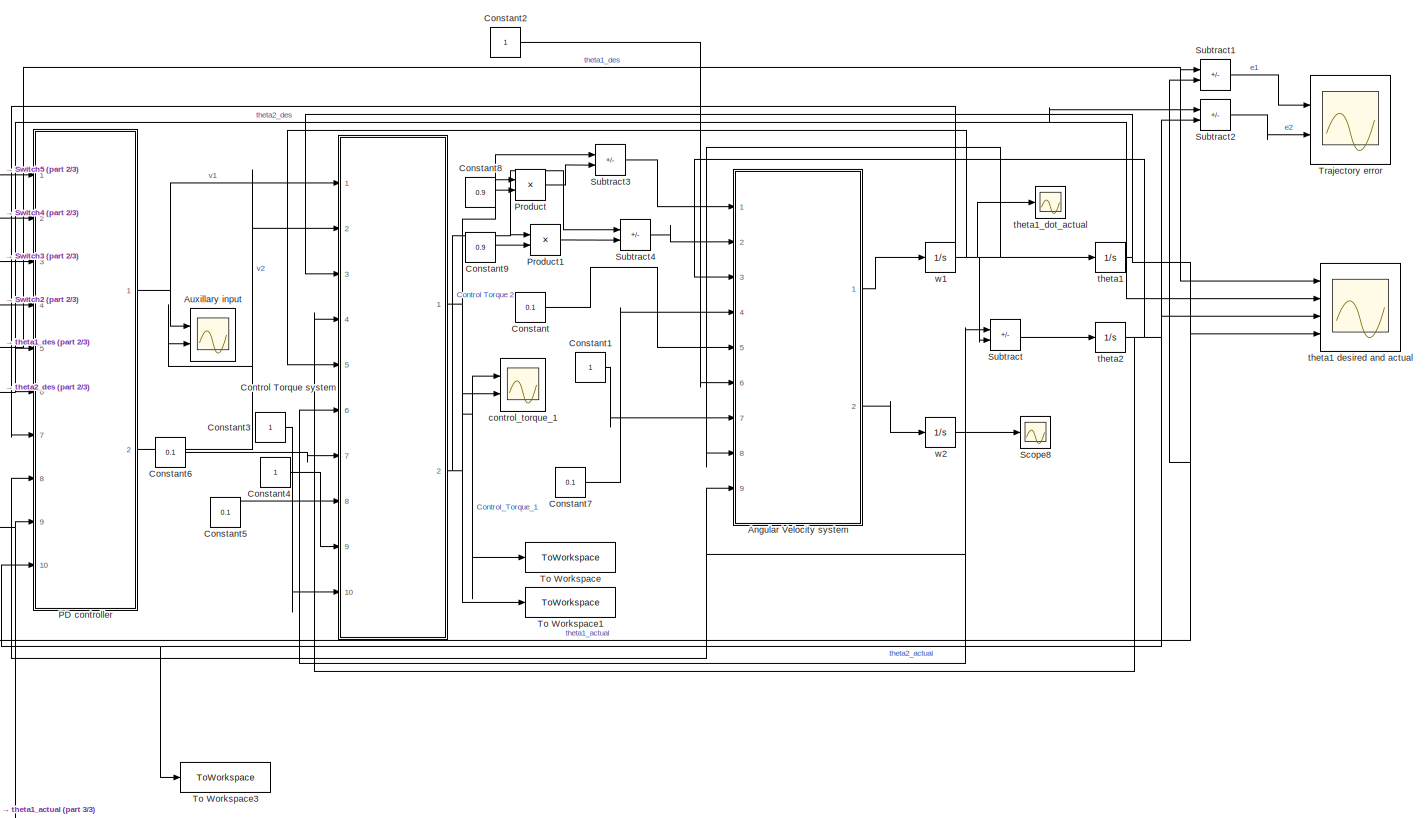
[diagram: root canvas - part 1/3, center side, full height]
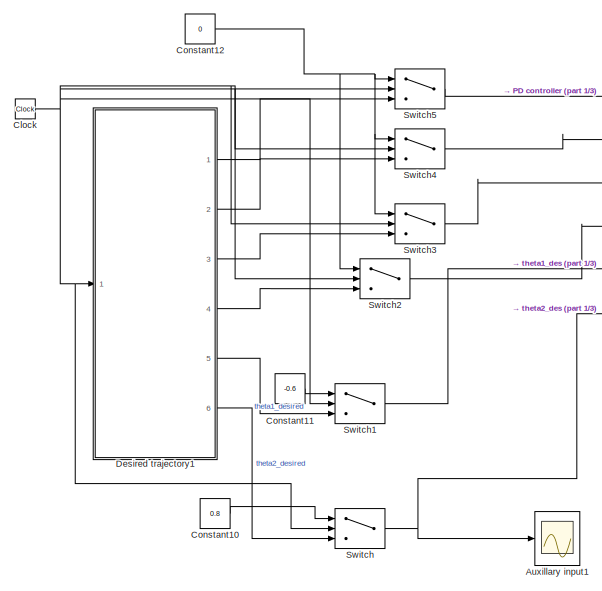
[diagram: root canvas - part 2/3, middle left region]
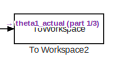
[diagram: root canvas - part 3/3, bottom center region]
MODEL slx_2086d699f761
KIND model
CONFIG AbsTol = auto
CONFIG EnableMultiTasking = off
CONFIG FixedStep = auto
CONFIG MaxStep = auto
CONFIG MinStep = auto
CONFIG RelTol = 1e-3
CONFIG SampleTimeConstraint = Unconstrained
CONFIG SolverName = VariableStepAuto
CONFIG StartTime = 0.0
CONFIG StopTime = 10
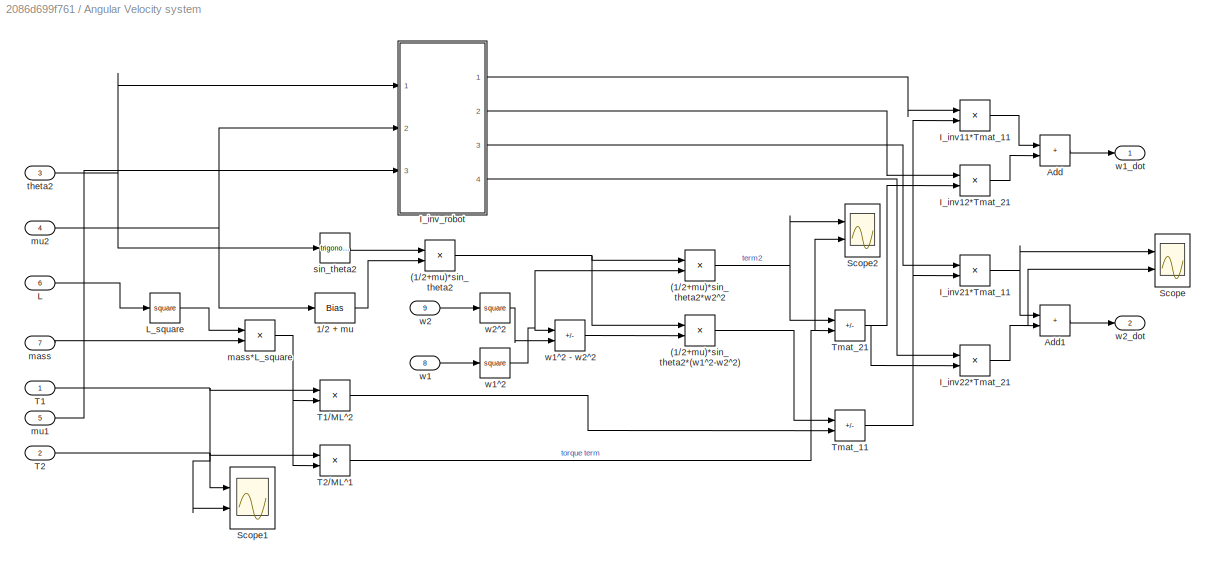
BLOCK [SubSystem] Angular Velocity system
  Ports = [9, 2]
  RequestExecContextInheritance = off
BLOCK [Product] Angular Velocity system/(1//2+mu)*sin_theta2
  Ports = [2, 1]
BLOCK [Product] Angular Velocity system/(1//2+mu)*sin_theta2*(w1^2-w2^2)
  Ports = [2, 1]
BLOCK [Product] Angular Velocity system/(1//2+mu)*sin_theta2*w2^2
  Ports = [2, 1]
BLOCK [Bias] Angular Velocity system/1//2 + mu
  Bias = 1/2
  SaturateOnIntegerOverflow = off
BLOCK [Sum] Angular Velocity system/Add
  IconShape = rectangular
  Ports = [2, 1]
BLOCK [Sum] Angular Velocity system/Add1
  IconShape = rectangular
  Ports = [2, 1]
BLOCK [Product] Angular Velocity system/I_inv11*Tmat_11
  Ports = [2, 1]
BLOCK [Product] Angular Velocity system/I_inv12*Tmat_21
  Ports = [2, 1]
BLOCK [Product] Angular Velocity system/I_inv21*Tmat_11
  Ports = [2, 1]
BLOCK [Product] Angular Velocity system/I_inv22*Tmat_21
  Ports = [2, 1]
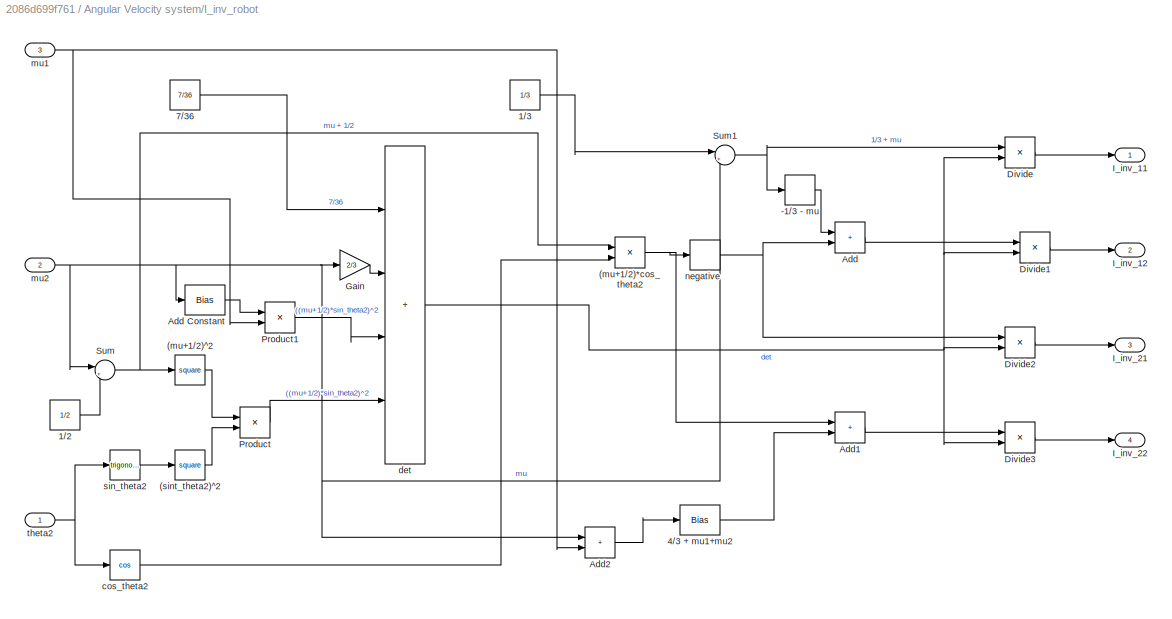
BLOCK [SubSystem] Angular Velocity system/I_inv_robot
  Ports = [3, 4]
  RequestExecContextInheritance = off
BLOCK [Product] Angular Velocity system/I_inv_robot/(mu+1//2)*cos_theta2
  Ports = [2, 1]
BLOCK [Math] Angular Velocity system/I_inv_robot/(mu+1//2)^2
  Operator = square
  Ports = [1, 1]
BLOCK [Math] Angular Velocity system/I_inv_robot/(sint_theta2)^2
  Operator = square
  Ports = [1, 1]
BLOCK [UnaryMinus] Angular Velocity system/I_inv_robot/-1//3 - mu
BLOCK [Constant] Angular Velocity system/I_inv_robot/1//2
  Value = 1/2
BLOCK [Constant] Angular Velocity system/I_inv_robot/1//3
  Value = 1/3
BLOCK [Bias] Angular Velocity system/I_inv_robot/4//3 + mu1+mu2
  Bias = 4/3
  SaturateOnIntegerOverflow = off
BLOCK [Constant] Angular Velocity system/I_inv_robot/7//36
  Value = 7/36
BLOCK [Sum] Angular Velocity system/I_inv_robot/Add
  IconShape = rectangular
  Ports = [2, 1]
BLOCK [Bias] Angular Velocity system/I_inv_robot/Add Constant
  Bias = 1/3
  SaturateOnIntegerOverflow = off
BLOCK [Sum] Angular Velocity system/I_inv_robot/Add1
  IconShape = rectangular
  Ports = [2, 1]
BLOCK [Sum] Angular Velocity system/I_inv_robot/Add2
  IconShape = rectangular
  Ports = [2, 1]
BLOCK [Product] Angular Velocity system/I_inv_robot/Divide
  Inputs = */
  Ports = [2, 1]
BLOCK [Product] Angular Velocity system/I_inv_robot/Divide1
  Inputs = */
  Ports = [2, 1]
BLOCK [Product] Angular Velocity system/I_inv_robot/Divide2
  Inputs = */
  Ports = [2, 1]
BLOCK [Product] Angular Velocity system/I_inv_robot/Divide3
  Inputs = */
  Ports = [2, 1]
BLOCK [Gain] Angular Velocity system/I_inv_robot/Gain
  Gain = 2/3
BLOCK [Outport] Angular Velocity system/I_inv_robot/I_inv_11
BLOCK [Outport] Angular Velocity system/I_inv_robot/I_inv_12
  Port = 2
BLOCK [Outport] Angular Velocity system/I_inv_robot/I_inv_21
  Port = 3
BLOCK [Outport] Angular Velocity system/I_inv_robot/I_inv_22
  Port = 4
BLOCK [Product] Angular Velocity system/I_inv_robot/Product
  Ports = [2, 1]
BLOCK [Product] Angular Velocity system/I_inv_robot/Product1
  Ports = [2, 1]
BLOCK [Sum] Angular Velocity system/I_inv_robot/Sum
  Inputs = |++
  Ports = [2, 1]
BLOCK [Sum] Angular Velocity system/I_inv_robot/Sum1
  Inputs = |++
  Ports = [2, 1]
BLOCK [Trigonometry] Angular Velocity system/I_inv_robot/cos_theta2
  Operator = cos
  Ports = [1, 1]
BLOCK [Sum] Angular Velocity system/I_inv_robot/det
  IconShape = rectangular
  Inputs = ++++
  Ports = [4, 1]
BLOCK [Inport] Angular Velocity system/I_inv_robot/mu1
  Port = 3
BLOCK [Inport] Angular Velocity system/I_inv_robot/mu2
  Port = 2
BLOCK [UnaryMinus] Angular Velocity system/I_inv_robot/negative
BLOCK [Trigonometry] Angular Velocity system/I_inv_robot/sin_theta2
  Ports = [1, 1]
BLOCK [Inport] Angular Velocity system/I_inv_robot/theta2
BLOCK [Inport] Angular Velocity system/L
  Port = 6
BLOCK [Math] Angular Velocity system/L_square
  Operator = square
  Ports = [1, 1]
BLOCK [Scope] Angular Velocity system/Scope
  Floating = off
  NumInputPorts = 2
  Ports = [2]
  ScopeSpecificationString = Simulink.scopes.TimeScopeBlockCfg('CurrentConfiguration', extmgr.ConfigurationSet(extmgr.Configuration('Core','General UI',true),extmgr.Configuration('Core','Source UI',true),extmgr.Configuration('Sources','WiredSimulink',true,'DataLoggingVariableName','ScopeData3'),extmgr.Configuration('Visuals','Time Domain',true,'SerializedDisplays',{struct('MinYLimReal','-0.6222','MaxYLimReal','0.57799','YLabe...<+1388ch>
BLOCK [Scope] Angular Velocity system/Scope1
  Floating = off
  NumInputPorts = 2
  Ports = [2]
  ScopeSpecificationString = Simulink.scopes.TimeScopeBlockCfg('CurrentConfiguration', extmgr.ConfigurationSet(extmgr.Configuration('Core','General UI',true),extmgr.Configuration('Core','Source UI',true),extmgr.Configuration('Sources','WiredSimulink',true,'DataLoggingVariableName','ScopeData4'),extmgr.Configuration('Visuals','Time Domain',true,'SerializedDisplays',{struct('MinYLimReal','-0.296','MaxYLimReal','0.27681','YLabel...<+1358ch>
BLOCK [Scope] Angular Velocity system/Scope2
  Floating = off
  NumInputPorts = 2
  Ports = [2]
  ScopeSpecificationString = Simulink.scopes.TimeScopeBlockCfg('CurrentConfiguration', extmgr.ConfigurationSet(extmgr.Configuration('Core','General UI',true),extmgr.Configuration('Core','Source UI',true),extmgr.Configuration('Sources','WiredSimulink',true,'DataLoggingVariableName','ScopeData5'),extmgr.Configuration('Visuals','Time Domain',true,'SerializedDisplays',{struct('MinYLimReal','-0.08843','MaxYLimReal','0.08195','YLab...<+1376ch>
BLOCK [Inport] Angular Velocity system/T1
BLOCK [Product] Angular Velocity system/T1//ML^2
  Inputs = */
  Ports = [2, 1]
BLOCK [Inport] Angular Velocity system/T2
  Port = 2
BLOCK [Product] Angular Velocity system/T2//ML^1
  Inputs = */
  Ports = [2, 1]
BLOCK [Sum] Angular Velocity system/Tmat_11
  IconShape = rectangular
  Inputs = -+
  Ports = [2, 1]
BLOCK [Sum] Angular Velocity system/Tmat_21
  IconShape = rectangular
  Inputs = -+
  Ports = [2, 1]
BLOCK [Inport] Angular Velocity system/mass
  Port = 7
BLOCK [Product] Angular Velocity system/mass*L_square
  Ports = [2, 1]
BLOCK [Inport] Angular Velocity system/mu1
  Port = 5
BLOCK [Inport] Angular Velocity system/mu2
  Port = 4
BLOCK [Trigonometry] Angular Velocity system/sin_theta2
  Ports = [1, 1]
BLOCK [Inport] Angular Velocity system/theta2
  Port = 3
BLOCK [Inport] Angular Velocity system/w1
  Port = 8
BLOCK [Math] Angular Velocity system/w1^2
  Operator = square
  Ports = [1, 1]
BLOCK [Sum] Angular Velocity system/w1^2 - w2^2
  IconShape = rectangular
  Inputs = +-
  Ports = [2, 1]
BLOCK [Outport] Angular Velocity system/w1_dot
BLOCK [Inport] Angular Velocity system/w2
  Port = 9
BLOCK [Math] Angular Velocity system/w2^2
  Operator = square
  Ports = [1, 1]
BLOCK [Outport] Angular Velocity system/w2_dot
  Port = 2
BLOCK [Scope] Auxillary input
  Floating = off
  NumInputPorts = 2
  Ports = [2]
  ScopeSpecificationString = Simulink.scopes.TimeScopeBlockCfg('CurrentConfiguration', extmgr.ConfigurationSet(extmgr.Configuration('Core','General UI',true),extmgr.Configuration('Core','Source UI',true),extmgr.Configuration('Sources','WiredSimulink',true,'DataLoggingVariableName','ScopeData1'),extmgr.Configuration('Visuals','Time Domain',true,'SerializedDisplays',{struct('MinYLimReal','-16.02621','MaxYLimReal','21.51442','YL...<+1583ch>
BLOCK [Scope] Auxillary input1
  Floating = off
  NumInputPorts = 1
  Ports = [1]
  ScopeSpecificationString = Simulink.scopes.TimeScopeBlockCfg('CurrentConfiguration', extmgr.ConfigurationSet(extmgr.Configuration('Core','General UI',true),extmgr.Configuration('Core','Source UI',true),extmgr.Configuration('Sources','WiredSimulink',true,'DataLoggingVariableName','ScopeData1'),extmgr.Configuration('Visuals','Time Domain',true,'SerializedDisplays',{struct('MinYLimReal','-16.02621','MaxYLimReal','21.51442','YL...<+1556ch>
BLOCK [Clock] Clock
  DisplayTime = on
BLOCK [Constant] Constant
  Value = 0.1
BLOCK [Constant] Constant1
BLOCK [Constant] Constant10
  Value = 0.8
BLOCK [Constant] Constant11
  Value = -0.6
BLOCK [Constant] Constant12
  Value = 0
BLOCK [Constant] Constant2
BLOCK [Constant] Constant3
BLOCK [Constant] Constant4
BLOCK [Constant] Constant5
  Value = 0.1
BLOCK [Constant] Constant6
  Value = 0.1
BLOCK [Constant] Constant7
  Value = 0.1
BLOCK [Constant] Constant8
  Value = 0.9
BLOCK [Constant] Constant9
  Value = 0.9
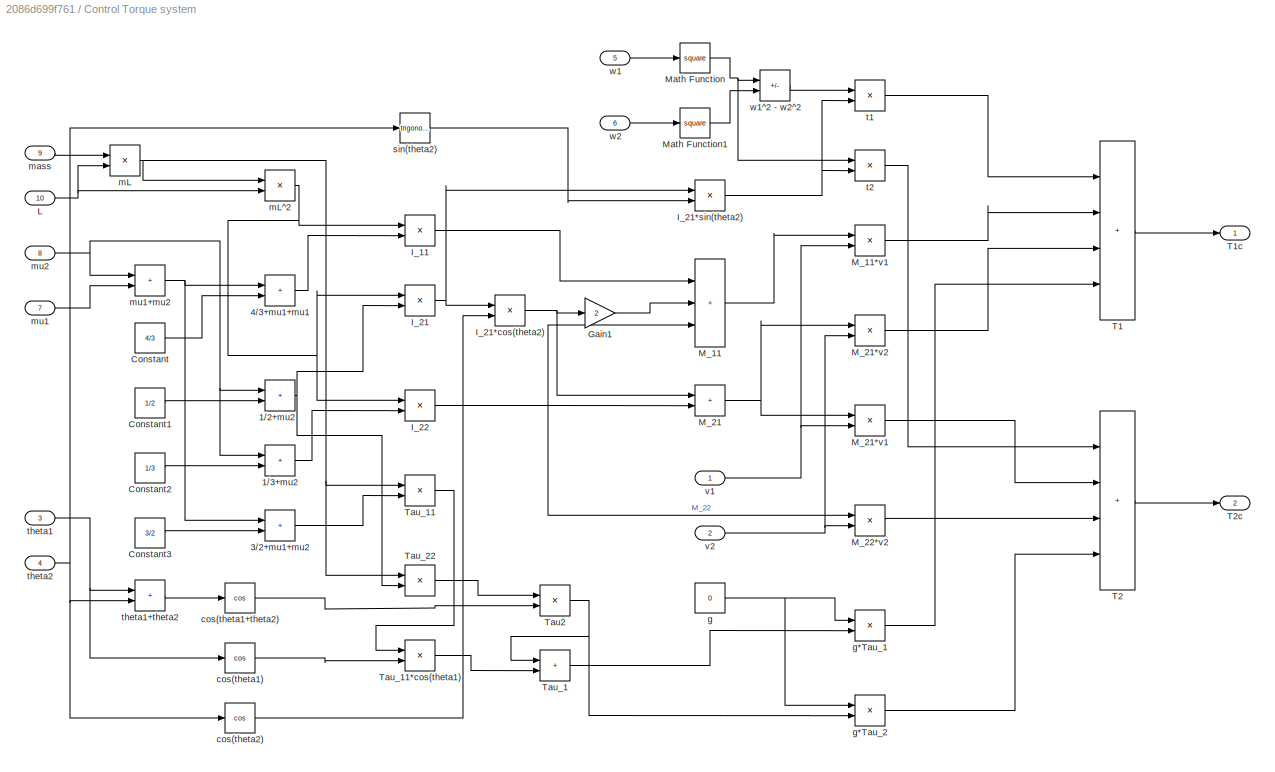
BLOCK [SubSystem] Control Torque system
  Ports = [10, 2]
  RequestExecContextInheritance = off
BLOCK [Sum] Control Torque system/1//2+mu2
  IconShape = rectangular
  Ports = [2, 1]
BLOCK [Sum] Control Torque system/1//3+mu2
  IconShape = rectangular
  Ports = [2, 1]
BLOCK [Sum] Control Torque system/3//2+mu1+mu2
  IconShape = rectangular
  Ports = [2, 1]
BLOCK [Sum] Control Torque system/4//3+mu1+mu1
  IconShape = rectangular
  Ports = [2, 1]
BLOCK [Constant] Control Torque system/Constant
  Value = 4/3
BLOCK [Constant] Control Torque system/Constant1
  Value = 1/2
BLOCK [Constant] Control Torque system/Constant2
  Value = 1/3
BLOCK [Constant] Control Torque system/Constant3
  Value = 3/2
BLOCK [Gain] Control Torque system/Gain1
  Gain = 2
BLOCK [Product] Control Torque system/I_11
  Ports = [2, 1]
BLOCK [Product] Control Torque system/I_21
  Ports = [2, 1]
BLOCK [Product] Control Torque system/I_21*cos(theta2)
  Ports = [2, 1]
BLOCK [Product] Control Torque system/I_21*sin(theta2)
  Ports = [2, 1]
BLOCK [Product] Control Torque system/I_22
  Ports = [2, 1]
BLOCK [Inport] Control Torque system/L
  Port = 10
BLOCK [Sum] Control Torque system/M_11
  IconShape = rectangular
  Inputs = +++
  Ports = [3, 1]
BLOCK [Product] Control Torque system/M_11*v1
  Ports = [2, 1]
BLOCK [Sum] Control Torque system/M_21
  IconShape = rectangular
  Ports = [2, 1]
BLOCK [Product] Control Torque system/M_21*v1
  Ports = [2, 1]
BLOCK [Product] Control Torque system/M_21*v2
  Ports = [2, 1]
BLOCK [Product] Control Torque system/M_22*v2
  Ports = [2, 1]
BLOCK [Math] Control Torque system/Math Function
  Operator = square
  Ports = [1, 1]
BLOCK [Math] Control Torque system/Math Function1
  Operator = square
  Ports = [1, 1]
BLOCK [Sum] Control Torque system/T1
  IconShape = rectangular
  Inputs = ++++
  Ports = [4, 1]
BLOCK [Outport] Control Torque system/T1c
BLOCK [Sum] Control Torque system/T2
  IconShape = rectangular
  Inputs = ++++
  Ports = [4, 1]
BLOCK [Outport] Control Torque system/T2c
  Port = 2
BLOCK [Product] Control Torque system/Tau2
  Ports = [2, 1]
BLOCK [Sum] Control Torque system/Tau_1
  IconShape = rectangular
  Ports = [2, 1]
BLOCK [Product] Control Torque system/Tau_11
  Ports = [2, 1]
BLOCK [Product] Control Torque system/Tau_11*cos(theta1)
  Ports = [2, 1]
BLOCK [Product] Control Torque system/Tau_22
  Ports = [2, 1]
BLOCK [Trigonometry] Control Torque system/cos(theta1)
  Operator = cos
  Ports = [1, 1]
BLOCK [Trigonometry] Control Torque system/cos(theta1+theta2)
  Operator = cos
  Ports = [1, 1]
BLOCK [Trigonometry] Control Torque system/cos(theta2)
  Operator = cos
  Ports = [1, 1]
BLOCK [Constant] Control Torque system/g
  Value = 0
BLOCK [Product] Control Torque system/g*Tau_1
  Ports = [2, 1]
BLOCK [Product] Control Torque system/g*Tau_2
  Ports = [2, 1]
BLOCK [Product] Control Torque system/mL
  Ports = [2, 1]
BLOCK [Product] Control Torque system/mL^2
  Ports = [2, 1]
BLOCK [Inport] Control Torque system/mass
  Port = 9
BLOCK [Inport] Control Torque system/mu1
  Port = 7
BLOCK [Sum] Control Torque system/mu1+mu2
  IconShape = rectangular
  Ports = [2, 1]
BLOCK [Inport] Control Torque system/mu2
  Port = 8
BLOCK [Trigonometry] Control Torque system/sin(theta2)
  Ports = [1, 1]
BLOCK [Product] Control Torque system/t1
  Ports = [2, 1]
BLOCK [Product] Control Torque system/t2
  Ports = [2, 1]
BLOCK [Inport] Control Torque system/theta1
  Port = 3
BLOCK [Sum] Control Torque system/theta1+theta2
  IconShape = rectangular
  Ports = [2, 1]
BLOCK [Inport] Control Torque system/theta2
  Port = 4
BLOCK [Inport] Control Torque system/v1
BLOCK [Inport] Control Torque system/v2
  Port = 2
BLOCK [Inport] Control Torque system/w1
  Port = 5
BLOCK [Sum] Control Torque system/w1^2 - w2^2
  IconShape = rectangular
  Inputs = +-
  Ports = [2, 1]
BLOCK [Inport] Control Torque system/w2
  Port = 6
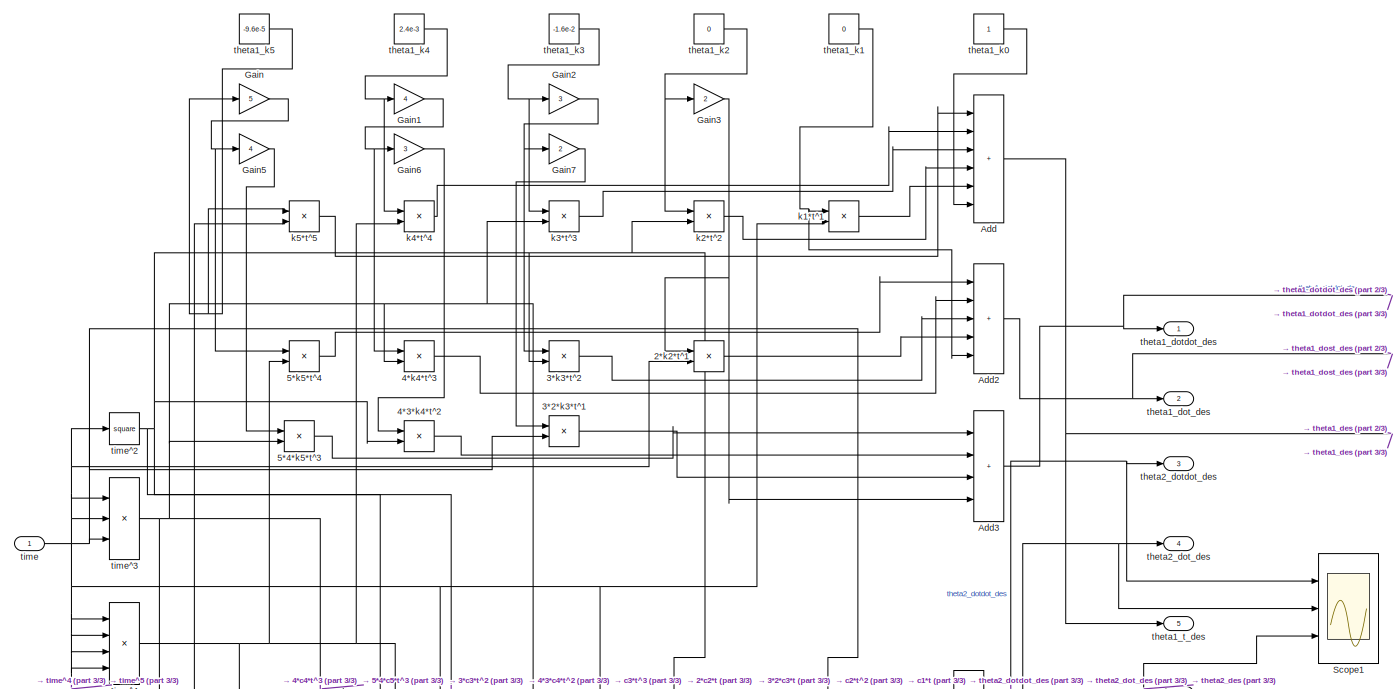
[diagram: Desired trajectory1 - part 1/3, top center region]
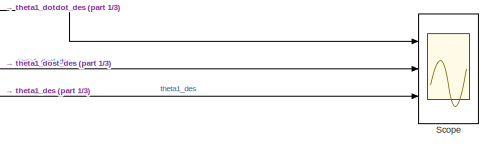
[diagram: Desired trajectory1 - part 2/3, top right region]
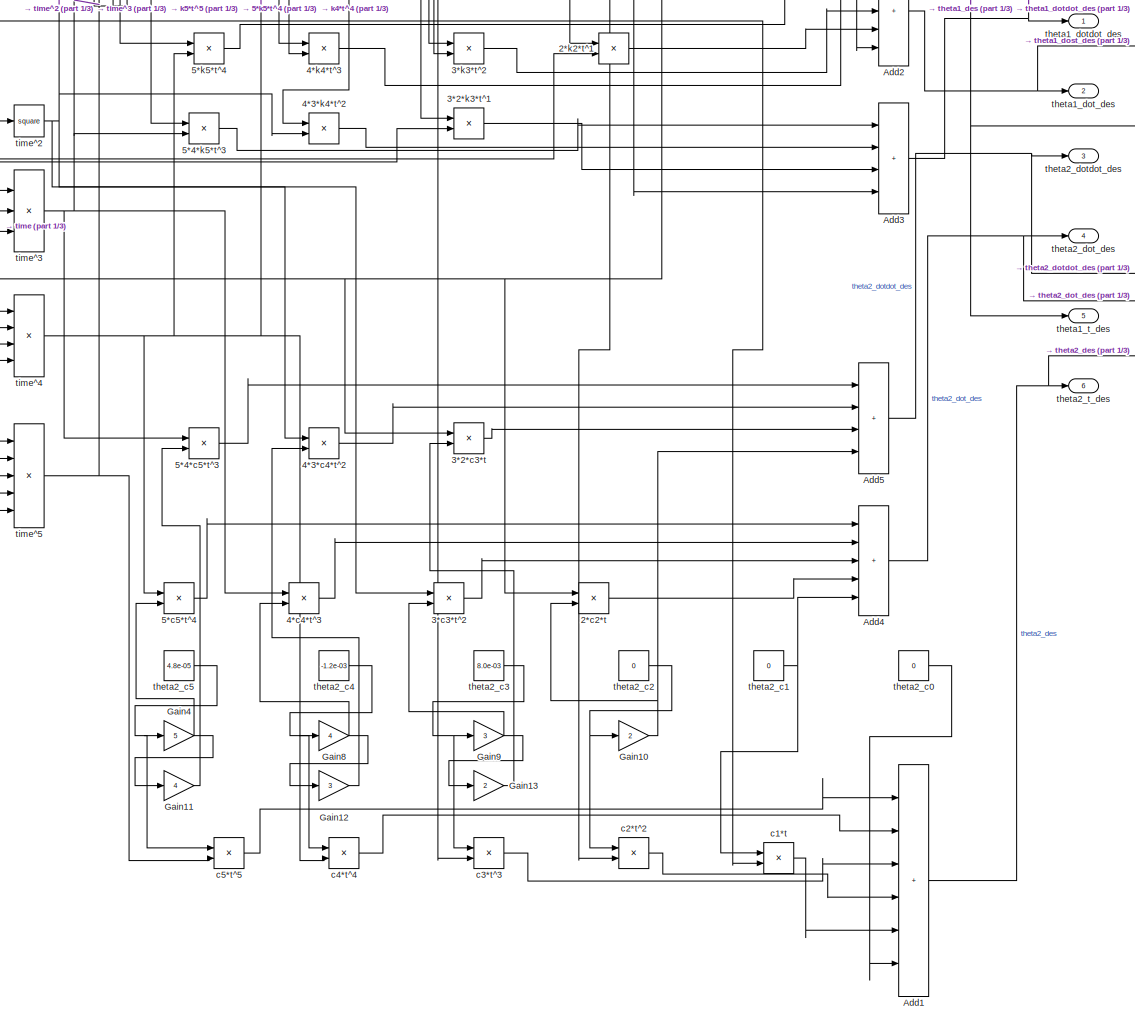
[diagram: Desired trajectory1 - part 3/3, center side, full height]
BLOCK [SubSystem] Desired trajectory1
  Ports = [1, 6]
  RequestExecContextInheritance = off
BLOCK [Product] Desired trajectory1/2*c2*t
  Ports = [2, 1]
BLOCK [Product] Desired trajectory1/2*k2*t^1
  Ports = [2, 1]
BLOCK [Product] Desired trajectory1/3*2*c3*t
  Ports = [2, 1]
BLOCK [Product] Desired trajectory1/3*2*k3*t^1
  Ports = [2, 1]
BLOCK [Product] Desired trajectory1/3*c3*t^2
  Ports = [2, 1]
BLOCK [Product] Desired trajectory1/3*k3*t^2
  Ports = [2, 1]
BLOCK [Product] Desired trajectory1/4*3*c4*t^2
  Ports = [2, 1]
BLOCK [Product] Desired trajectory1/4*3*k4*t^2
  Ports = [2, 1]
BLOCK [Product] Desired trajectory1/4*c4*t^3
  Ports = [2, 1]
BLOCK [Product] Desired trajectory1/4*k4*t^3
  Ports = [2, 1]
BLOCK [Product] Desired trajectory1/5*4*c5*t^3
  Ports = [2, 1]
BLOCK [Product] Desired trajectory1/5*4*k5*t^3
  Ports = [2, 1]
BLOCK [Product] Desired trajectory1/5*c5*t^4
  Ports = [2, 1]
BLOCK [Product] Desired trajectory1/5*k5*t^4
  Ports = [2, 1]
BLOCK [Sum] Desired trajectory1/Add
  IconShape = rectangular
  Inputs = ++++++
  Ports = [6, 1]
BLOCK [Sum] Desired trajectory1/Add1
  IconShape = rectangular
  Inputs = ++++++
  Ports = [6, 1]
BLOCK [Sum] Desired trajectory1/Add2
  IconShape = rectangular
  Inputs = +++++
  Ports = [5, 1]
BLOCK [Sum] Desired trajectory1/Add3
  IconShape = rectangular
  Inputs = ++++
  Ports = [4, 1]
BLOCK [Sum] Desired trajectory1/Add4
  IconShape = rectangular
  Inputs = +++++
  Ports = [5, 1]
BLOCK [Sum] Desired trajectory1/Add5
  IconShape = rectangular
  Inputs = ++++
  Ports = [4, 1]
BLOCK [Gain] Desired trajectory1/Gain
  Gain = 5
BLOCK [Gain] Desired trajectory1/Gain1
  Gain = 4
BLOCK [Gain] Desired trajectory1/Gain10
  Gain = 2
BLOCK [Gain] Desired trajectory1/Gain11
  Gain = 4
BLOCK [Gain] Desired trajectory1/Gain12
  Gain = 3
BLOCK [Gain] Desired trajectory1/Gain13
  Gain = 2
BLOCK [Gain] Desired trajectory1/Gain2
  Gain = 3
BLOCK [Gain] Desired trajectory1/Gain3
  Gain = 2
BLOCK [Gain] Desired trajectory1/Gain4
  Gain = 5
BLOCK [Gain] Desired trajectory1/Gain5
  Gain = 4
BLOCK [Gain] Desired trajectory1/Gain6
  Gain = 3
BLOCK [Gain] Desired trajectory1/Gain7
  Gain = 2
BLOCK [Gain] Desired trajectory1/Gain8
  Gain = 4
BLOCK [Gain] Desired trajectory1/Gain9
  Gain = 3
BLOCK [Scope] Desired trajectory1/Scope
  Floating = off
  NumInputPorts = 3
  Ports = [3]
  ScopeSpecificationString = Simulink.scopes.TimeScopeBlockCfg('CurrentConfiguration', extmgr.ConfigurationSet(extmgr.Configuration('Core','General UI',true),extmgr.Configuration('Core','Source UI',true),extmgr.Configuration('Sources','WiredSimulink',true,'DataLoggingVariableName','ScopeData1'),extmgr.Configuration('Visuals','Time Domain',true,'SerializedDisplays',{struct('MinYLimReal','-0.8','MaxYLimReal','1.2','YLabelReal',...<+1410ch>
BLOCK [Scope] Desired trajectory1/Scope1
  Floating = off
  NumInputPorts = 3
  Ports = [3]
  ScopeSpecificationString = Simulink.scopes.TimeScopeBlockCfg('CurrentConfiguration', extmgr.ConfigurationSet(extmgr.Configuration('Core','General UI',true),extmgr.Configuration('Core','Source UI',true),extmgr.Configuration('Sources','WiredSimulink',true,'DataLoggingVariableName','ScopeData2'),extmgr.Configuration('Visuals','Time Domain',true,'SerializedDisplays',{struct('MinYLimReal','-0.15194','MaxYLimReal','0.90577','YLab...<+1433ch>
BLOCK [Product] Desired trajectory1/c1*t
  Ports = [2, 1]
BLOCK [Product] Desired trajectory1/c2*t^2
  Ports = [2, 1]
BLOCK [Product] Desired trajectory1/c3*t^3
  Ports = [2, 1]
BLOCK [Product] Desired trajectory1/c4*t^4
  Ports = [2, 1]
BLOCK [Product] Desired trajectory1/c5*t^5
  Ports = [2, 1]
BLOCK [Product] Desired trajectory1/k1*t^1
  Ports = [2, 1]
BLOCK [Product] Desired trajectory1/k2*t^2
  Ports = [2, 1]
BLOCK [Product] Desired trajectory1/k3*t^3
  Ports = [2, 1]
BLOCK [Product] Desired trajectory1/k4*t^4
  Ports = [2, 1]
BLOCK [Product] Desired trajectory1/k5*t^5
  Ports = [2, 1]
BLOCK [Outport] Desired trajectory1/theta1_dot_des
  Port = 2
BLOCK [Outport] Desired trajectory1/theta1_dotdot_des
BLOCK [Constant] Desired trajectory1/theta1_k0
BLOCK [Constant] Desired trajectory1/theta1_k1
  Value = 0
BLOCK [Constant] Desired trajectory1/theta1_k2
  Value = 0
BLOCK [Constant] Desired trajectory1/theta1_k3
  Value = -1.6e-2
BLOCK [Constant] Desired trajectory1/theta1_k4
  Value = 2.4e-3
BLOCK [Constant] Desired trajectory1/theta1_k5
  Value = -9.6e-5
BLOCK [Outport] Desired trajectory1/theta1_t_des
  Port = 5
BLOCK [Constant] Desired trajectory1/theta2_c0
  Value = 0
BLOCK [Constant] Desired trajectory1/theta2_c1
  Value = 0
BLOCK [Constant] Desired trajectory1/theta2_c2
  Value = 0
BLOCK [Constant] Desired trajectory1/theta2_c3
  Value = 8.0e-03
BLOCK [Constant] Desired trajectory1/theta2_c4
  Value = -1.2e-03
BLOCK [Constant] Desired trajectory1/theta2_c5
  Value = 4.8e-05
BLOCK [Outport] Desired trajectory1/theta2_dot_des
  Port = 4
BLOCK [Outport] Desired trajectory1/theta2_dotdot_des
  Port = 3
BLOCK [Outport] Desired trajectory1/theta2_t_des
  Port = 6
BLOCK [Inport] Desired trajectory1/time
BLOCK [Math] Desired trajectory1/time^2
  Operator = square
  Ports = [1, 1]
BLOCK [Product] Desired trajectory1/time^3
  Inputs = 3
  Ports = [3, 1]
BLOCK [Product] Desired trajectory1/time^4
  Inputs = 4
  Ports = [4, 1]
BLOCK [Product] Desired trajectory1/time^5
  Inputs = 5
  Ports = [5, 1]
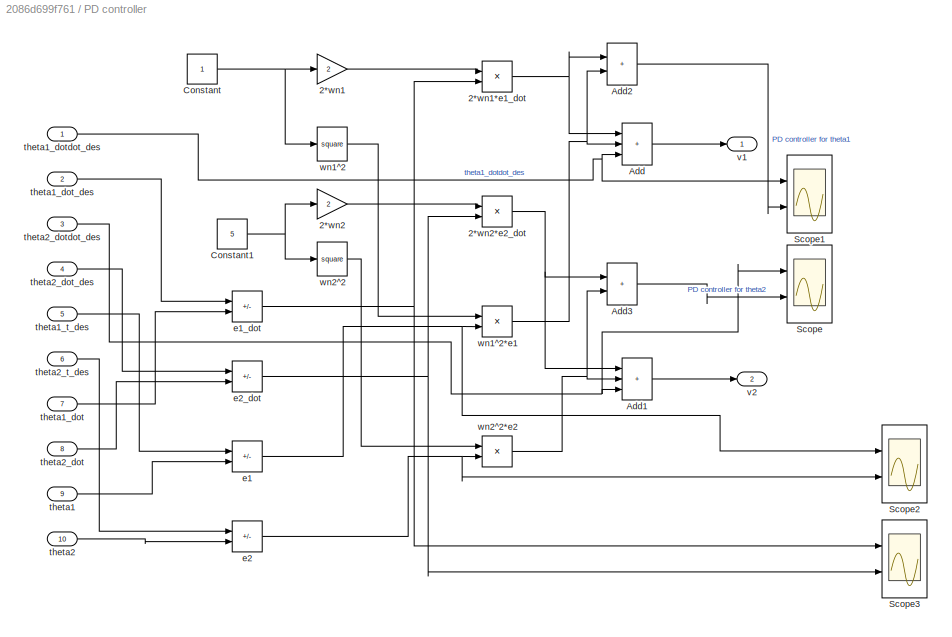
BLOCK [SubSystem] PD controller
  Ports = [10, 2]
  RequestExecContextInheritance = off
BLOCK [Gain] PD controller/2*wn1
  Gain = 2
BLOCK [Product] PD controller/2*wn1*e1_dot
  Ports = [2, 1]
BLOCK [Gain] PD controller/2*wn2
  Gain = 2
BLOCK [Product] PD controller/2*wn2*e2_dot
  Ports = [2, 1]
BLOCK [Sum] PD controller/Add
  IconShape = rectangular
  Inputs = +++
  Ports = [3, 1]
BLOCK [Sum] PD controller/Add1
  IconShape = rectangular
  Inputs = +++
  Ports = [3, 1]
BLOCK [Sum] PD controller/Add2
  IconShape = rectangular
  Ports = [2, 1]
BLOCK [Sum] PD controller/Add3
  IconShape = rectangular
  Ports = [2, 1]
BLOCK [Constant] PD controller/Constant
  VectorParams1D = off
BLOCK [Constant] PD controller/Constant1
  Value = 5
  VectorParams1D = off
BLOCK [Scope] PD controller/Scope
  Floating = off
  NumInputPorts = 2
  Ports = [2]
  ScopeSpecificationString = Simulink.scopes.TimeScopeBlockCfg('CurrentConfiguration', extmgr.ConfigurationSet(extmgr.Configuration('Core','General UI',true),extmgr.Configuration('Core','Source UI',true),extmgr.Configuration('Sources','WiredSimulink',true,'DataLoggingVariableName','ScopeData2'),extmgr.Configuration('Visuals','Time Domain',true,'SerializedDisplays',{struct('MinYLimReal','-0.06755','MaxYLimReal','0.14635','YLab...<+1430ch>
BLOCK [Scope] PD controller/Scope1
  Floating = off
  NumInputPorts = 2
  Ports = [2]
  ScopeSpecificationString = Simulink.scopes.TimeScopeBlockCfg('CurrentConfiguration', extmgr.ConfigurationSet(extmgr.Configuration('Core','General UI',true),extmgr.Configuration('Core','Source UI',true),extmgr.Configuration('Sources','WiredSimulink',true,'DataLoggingVariableName','ScopeData2'),extmgr.Configuration('Visuals','Time Domain',true,'SerializedDisplays',{struct('MinYLimReal','-0.79587','MaxYLimReal','0.44812','YLab...<+1430ch>
BLOCK [Scope] PD controller/Scope2
  Floating = off
  NumInputPorts = 2
  Ports = [2]
  ScopeSpecificationString = Simulink.scopes.TimeScopeBlockCfg('CurrentConfiguration', extmgr.ConfigurationSet(extmgr.Configuration('Core','General UI',true),extmgr.Configuration('Core','Source UI',true),extmgr.Configuration('Sources','WiredSimulink',true,'DataLoggingVariableName','ScopeData1'),extmgr.Configuration('Visuals','Time Domain',true,'SerializedDisplays',{struct('MinYLimReal','-0.1369','MaxYLimReal','0.07524','YLabe...<+1389ch>
BLOCK [Scope] PD controller/Scope3
  Floating = off
  NumInputPorts = 2
  Ports = [2]
  ScopeSpecificationString = Simulink.scopes.TimeScopeBlockCfg('CurrentConfiguration', extmgr.ConfigurationSet(extmgr.Configuration('Core','General UI',true),extmgr.Configuration('Core','Source UI',true),extmgr.Configuration('Sources','WiredSimulink',true,'DataLoggingVariableName','ScopeData2'),extmgr.Configuration('Visuals','Time Domain',true,'SerializedDisplays',{struct('MinYLimReal','-0.01319','MaxYLimReal','0.02068','YLab...<+1437ch>
BLOCK [Sum] PD controller/e1
  IconShape = rectangular
  Inputs = +-
  Ports = [2, 1]
BLOCK [Sum] PD controller/e1_dot
  IconShape = rectangular
  Inputs = +-
  Ports = [2, 1]
BLOCK [Sum] PD controller/e2
  IconShape = rectangular
  Inputs = +-
  Ports = [2, 1]
BLOCK [Sum] PD controller/e2_dot
  IconShape = rectangular
  Inputs = +-
  Ports = [2, 1]
BLOCK [Inport] PD controller/theta1
  Port = 9
BLOCK [Inport] PD controller/theta1_dot
  Port = 7
BLOCK [Inport] PD controller/theta1_dot_des
  Port = 2
BLOCK [Inport] PD controller/theta1_dotdot_des
BLOCK [Inport] PD controller/theta1_t_des
  Port = 5
BLOCK [Inport] PD controller/theta2
  Port = 10
BLOCK [Inport] PD controller/theta2_dot
  Port = 8
BLOCK [Inport] PD controller/theta2_dot_des
  Port = 4
BLOCK [Inport] PD controller/theta2_dotdot_des
  Port = 3
BLOCK [Inport] PD controller/theta2_t_des
  Port = 6
BLOCK [Outport] PD controller/v1
BLOCK [Outport] PD controller/v2
  Port = 2
BLOCK [Math] PD controller/wn1^2
  Operator = square
  Ports = [1, 1]
BLOCK [Product] PD controller/wn1^2*e1
  Ports = [2, 1]
BLOCK [Math] PD controller/wn2^2
  Operator = square
  Ports = [1, 1]
BLOCK [Product] PD controller/wn2^2*e2
  Ports = [2, 1]
BLOCK [Product] Product
  Ports = [2, 1]
BLOCK [Product] Product1
  Ports = [2, 1]
BLOCK [Scope] Scope8
  Floating = off
  NumInputPorts = 1
  Ports = [1]
  ScopeSpecificationString = Simulink.scopes.TimeScopeBlockCfg('CurrentConfiguration', extmgr.ConfigurationSet(extmgr.Configuration('Core','General UI',true),extmgr.Configuration('Core','Source UI',true),extmgr.Configuration('Sources','WiredSimulink',true,'DataLoggingVariableName','ScopeData8'),extmgr.Configuration('Visuals','Time Domain',true,'SerializedDisplays',{struct('MinYLimReal','-0.16887','MaxYLimReal','0.01903','YLab...<+1390ch>
BLOCK [Sum] Subtract
  IconShape = rectangular
  Inputs = +-
  Ports = [2, 1]
BLOCK [Sum] Subtract1
  IconShape = rectangular
  Inputs = +-
  Ports = [2, 1]
BLOCK [Sum] Subtract2
  IconShape = rectangular
  Inputs = +-
  Ports = [2, 1]
BLOCK [Sum] Subtract3
  IconShape = rectangular
  Inputs = +-
  Ports = [2, 1]
BLOCK [Sum] Subtract4
  IconShape = rectangular
  Inputs = +-
  Ports = [2, 1]
BLOCK [Switch] Switch
  InputSameDT = off
  SaturateOnIntegerOverflow = off
  Threshold = 10
BLOCK [Switch] Switch1
  InputSameDT = off
  SaturateOnIntegerOverflow = off
  Threshold = 10
BLOCK [Switch] Switch2
  InputSameDT = off
  SaturateOnIntegerOverflow = off
  Threshold = 10
BLOCK [Switch] Switch3
  InputSameDT = off
  SaturateOnIntegerOverflow = off
  Threshold = 10
BLOCK [Switch] Switch4
  InputSameDT = off
  SaturateOnIntegerOverflow = off
  Threshold = 10
BLOCK [Switch] Switch5
  InputSameDT = off
  SaturateOnIntegerOverflow = off
  Threshold = 10
BLOCK [ToWorkspace] To Workspace
  FixptAsFi = on
  MaxDataPoints = inf
  Ports = [1]
  SampleTime = -1
  VariableName = simout
BLOCK [ToWorkspace] To Workspace1
  FixptAsFi = on
  MaxDataPoints = inf
  Ports = [1]
  SampleTime = -1
  VariableName = simout1
BLOCK [ToWorkspace] To Workspace2
  FixptAsFi = on
  MaxDataPoints = inf
  Ports = [1]
  SampleTime = -1
  VariableName = simout2
BLOCK [ToWorkspace] To Workspace3
  FixptAsFi = on
  MaxDataPoints = inf
  Ports = [1]
  SampleTime = -1
  VariableName = simout3
BLOCK [Scope] Trajectory error
  Floating = off
  NumInputPorts = 2
  Ports = [2]
  ScopeSpecificationString = Simulink.scopes.TimeScopeBlockCfg('CurrentConfiguration', extmgr.ConfigurationSet(extmgr.Configuration('Core','General UI',true),extmgr.Configuration('Core','Source UI',true),extmgr.Configuration('Sources','WiredSimulink',true,'DataLoggingVariableName','ScopeData1'),extmgr.Configuration('Visuals','Time Domain',true,'SerializedDisplays',{struct('MinYLimReal','-0.64387','MaxYLimReal','0.35801','YLab...<+2119ch>
BLOCK [Scope] control_torque_1
  Floating = off
  NumInputPorts = 2
  Ports = [2]
  ScopeSpecificationString = Simulink.scopes.TimeScopeBlockCfg('CurrentConfiguration', extmgr.ConfigurationSet(extmgr.Configuration('Core','General UI',true),extmgr.Configuration('Core','Source UI',true),extmgr.Configuration('Sources','WiredSimulink',true,'DataLoggingVariableName','ScopeData4'),extmgr.Configuration('Visuals','Time Domain',true,'SerializedDisplays',{struct('MinYLimReal','-0.30107','MaxYLimReal','0.28328','YLab...<+1469ch>
BLOCK [Integrator] theta1
  InitialCondition = 1.0
  Ports = [1, 1]
BLOCK [Scope] theta1 desired and actual
  Floating = off
  NumInputPorts = 4
  Ports = [4]
  ScopeSpecificationString = Simulink.scopes.TimeScopeBlockCfg('CurrentConfiguration', extmgr.ConfigurationSet(extmgr.Configuration('Core','General UI',true),extmgr.Configuration('Core','Source UI',true),extmgr.Configuration('Sources','WiredSimulink',true),extmgr.Configuration('Visuals','Time Domain',true,'SerializedDisplays',{struct('MinYLimReal','-1.09005','MaxYLimReal','1.23223','YLabelReal','','MinYLimMag','0.00000','MaxY...<+1504ch>
BLOCK [Scope] theta1_dot_actual
  Floating = off
  NumInputPorts = 1
  Ports = [1]
  ScopeSpecificationString = Simulink.scopes.TimeScopeBlockCfg('CurrentConfiguration', extmgr.ConfigurationSet(extmgr.Configuration('Core','General UI',true),extmgr.Configuration('Core','Source UI',true),extmgr.Configuration('Sources','WiredSimulink',true,'DataLoggingVariableName','ScopeData7'),extmgr.Configuration('Visuals','Time Domain',true,'SerializedDisplays',{struct('MinYLimReal','-0.34017','MaxYLimReal','0.06127','YLab...<+1390ch>
BLOCK [Integrator] theta2
  Ports = [1, 1]
BLOCK [Integrator] w1
  Ports = [1, 1]
BLOCK [Integrator] w2
  Ports = [1, 1]
LINE Angular Velocity system/(1//2+mu)*sin_theta2*(w1^2-w2^2):1 -> Angular Velocity system/Tmat_11:1
NET Angular Velocity system/(1//2+mu)*sin_theta2*w2^2:1 -> Angular Velocity system/Scope2:1, Angular Velocity system/Tmat_21:1
NET Angular Velocity system/(1//2+mu)*sin_theta2:1 -> Angular Velocity system/(1//2+mu)*sin_theta2*(w1^2-w2^2):1, Angular Velocity system/(1//2+mu)*sin_theta2*w2^2:1
LINE Angular Velocity system/1//2 + mu:1 -> Angular Velocity system/(1//2+mu)*sin_theta2:2
LINE Angular Velocity system/Add1:1 -> Angular Velocity system/w2_dot:1
LINE Angular Velocity system/Add:1 -> Angular Velocity system/w1_dot:1
LINE Angular Velocity system/I_inv11*Tmat_11:1 -> Angular Velocity system/Add:1
LINE Angular Velocity system/I_inv12*Tmat_21:1 -> Angular Velocity system/Add:2
NET Angular Velocity system/I_inv21*Tmat_11:1 -> Angular Velocity system/Add1:1, Angular Velocity system/Scope:1
NET Angular Velocity system/I_inv22*Tmat_21:1 -> Angular Velocity system/Add1:2, Angular Velocity system/Scope:2
NET Angular Velocity system/I_inv_robot/(mu+1//2)*cos_theta2:1 -> Angular Velocity system/I_inv_robot/Add1:1, Angular Velocity system/I_inv_robot/negative:1
LINE Angular Velocity system/I_inv_robot/(mu+1//2)^2:1 -> Angular Velocity system/I_inv_robot/Product:1
LINE Angular Velocity system/I_inv_robot/(sint_theta2)^2:1 -> Angular Velocity system/I_inv_robot/Product:2
LINE Angular Velocity system/I_inv_robot/-1//3 - mu:1 -> Angular Velocity system/I_inv_robot/Add:1
LINE Angular Velocity system/I_inv_robot/1//2:1 -> Angular Velocity system/I_inv_robot/Sum:2
LINE Angular Velocity system/I_inv_robot/1//3:1 -> Angular Velocity system/I_inv_robot/Sum1:1
LINE Angular Velocity system/I_inv_robot/4//3 + mu1+mu2:1 -> Angular Velocity system/I_inv_robot/Add1:2
LINE Angular Velocity system/I_inv_robot/7//36:1 -> Angular Velocity system/I_inv_robot/det:1
LINE Angular Velocity system/I_inv_robot/Add Constant:1 -> Angular Velocity system/I_inv_robot/Product1:1
LINE Angular Velocity system/I_inv_robot/Add1:1 -> Angular Velocity system/I_inv_robot/Divide3:1
LINE Angular Velocity system/I_inv_robot/Add2:1 -> Angular Velocity system/I_inv_robot/4//3 + mu1+mu2:1
LINE Angular Velocity system/I_inv_robot/Add:1 -> Angular Velocity system/I_inv_robot/Divide1:1
LINE Angular Velocity system/I_inv_robot/Divide1:1 -> Angular Velocity system/I_inv_robot/I_inv_12:1
LINE Angular Velocity system/I_inv_robot/Divide2:1 -> Angular Velocity system/I_inv_robot/I_inv_21:1
LINE Angular Velocity system/I_inv_robot/Divide3:1 -> Angular Velocity system/I_inv_robot/I_inv_22:1
LINE Angular Velocity system/I_inv_robot/Divide:1 -> Angular Velocity system/I_inv_robot/I_inv_11:1
LINE Angular Velocity system/I_inv_robot/Gain:1 -> Angular Velocity system/I_inv_robot/det:2
LINE Angular Velocity system/I_inv_robot/Product1:1 -> Angular Velocity system/I_inv_robot/det:3
LINE Angular Velocity system/I_inv_robot/Product:1 -> Angular Velocity system/I_inv_robot/det:4
NET Angular Velocity system/I_inv_robot/Sum1:1 -> Angular Velocity system/I_inv_robot/-1//3 - mu:1, Angular Velocity system/I_inv_robot/Divide:1
NET Angular Velocity system/I_inv_robot/Sum:1 -> Angular Velocity system/I_inv_robot/(mu+1//2)*cos_theta2:1, Angular Velocity system/I_inv_robot/(mu+1//2)^2:1
LINE Angular Velocity system/I_inv_robot/cos_theta2:1 -> Angular Velocity system/I_inv_robot/(mu+1//2)*cos_theta2:2
NET Angular Velocity system/I_inv_robot/det:1 -> Angular Velocity system/I_inv_robot/Divide1:2, Angular Velocity system/I_inv_robot/Divide2:2, Angular Velocity system/I_inv_robot/Divide3:2, Angular Velocity system/I_inv_robot/Divide:2
NET Angular Velocity system/I_inv_robot/mu1:1 -> Angular Velocity system/I_inv_robot/Add2:2, Angular Velocity system/I_inv_robot/Product1:2
NET Angular Velocity system/I_inv_robot/mu2:1 -> Angular Velocity system/I_inv_robot/Add Constant:1, Angular Velocity system/I_inv_robot/Add2:1, Angular Velocity system/I_inv_robot/Gain:1, Angular Velocity system/I_inv_robot/Sum1:2, Angular Velocity system/I_inv_robot/Sum:1
NET Angular Velocity system/I_inv_robot/negative:1 -> Angular Velocity system/I_inv_robot/Add:2, Angular Velocity system/I_inv_robot/Divide2:1
LINE Angular Velocity system/I_inv_robot/sin_theta2:1 -> Angular Velocity system/I_inv_robot/(sint_theta2)^2:1
NET Angular Velocity system/I_inv_robot/theta2:1 -> Angular Velocity system/I_inv_robot/cos_theta2:1, Angular Velocity system/I_inv_robot/sin_theta2:1
LINE Angular Velocity system/I_inv_robot:1 -> Angular Velocity system/I_inv11*Tmat_11:1
LINE Angular Velocity system/I_inv_robot:2 -> Angular Velocity system/I_inv12*Tmat_21:1
LINE Angular Velocity system/I_inv_robot:3 -> Angular Velocity system/I_inv21*Tmat_11:1
LINE Angular Velocity system/I_inv_robot:4 -> Angular Velocity system/I_inv22*Tmat_21:1
LINE Angular Velocity system/L:1 -> Angular Velocity system/L_square:1
LINE Angular Velocity system/L_square:1 -> Angular Velocity system/mass*L_square:1
LINE Angular Velocity system/T1//ML^2:1 -> Angular Velocity system/Tmat_11:2
NET Angular Velocity system/T1:1 -> Angular Velocity system/Scope1:1, Angular Velocity system/T1//ML^2:1
NET Angular Velocity system/T2//ML^1:1 -> Angular Velocity system/Scope2:2, Angular Velocity system/Tmat_21:2
NET Angular Velocity system/T2:1 -> Angular Velocity system/Scope1:2, Angular Velocity system/T2//ML^1:1
NET Angular Velocity system/Tmat_11:1 -> Angular Velocity system/I_inv11*Tmat_11:2, Angular Velocity system/I_inv21*Tmat_11:2
NET Angular Velocity system/Tmat_21:1 -> Angular Velocity system/I_inv12*Tmat_21:2, Angular Velocity system/I_inv22*Tmat_21:2
NET Angular Velocity system/mass*L_square:1 -> Angular Velocity system/T1//ML^2:2, Angular Velocity system/T2//ML^1:2
LINE Angular Velocity system/mass:1 -> Angular Velocity system/mass*L_square:2
LINE Angular Velocity system/mu1:1 -> Angular Velocity system/I_inv_robot:3
NET Angular Velocity system/mu2:1 -> Angular Velocity system/1//2 + mu:1, Angular Velocity system/I_inv_robot:2
LINE Angular Velocity system/sin_theta2:1 -> Angular Velocity system/(1//2+mu)*sin_theta2:1
NET Angular Velocity system/theta2:1 -> Angular Velocity system/I_inv_robot:1, Angular Velocity system/sin_theta2:1
LINE Angular Velocity system/w1:1 -> Angular Velocity system/w1^2:1
LINE Angular Velocity system/w1^2 - w2^2:1 -> Angular Velocity system/(1//2+mu)*sin_theta2*(w1^2-w2^2):2
NET Angular Velocity system/w1^2:1 -> Angular Velocity system/(1//2+mu)*sin_theta2*w2^2:2, Angular Velocity system/w1^2 - w2^2:1
LINE Angular Velocity system/w2:1 -> Angular Velocity system/w2^2:1
LINE Angular Velocity system/w2^2:1 -> Angular Velocity system/w1^2 - w2^2:2
LINE Angular Velocity system:1 -> w1:1
LINE Angular Velocity system:2 -> w2:1
NET Clock:1 -> Desired trajectory1:1, Switch1:2, Switch2:2, Switch3:2, Switch4:2, Switch5:2, Switch:2
LINE Constant10:1 -> Switch:1
LINE Constant11:1 -> Switch1:1
NET Constant12:1 -> Switch2:1, Switch3:1, Switch4:1, Switch5:1
LINE Constant1:1 -> Angular Velocity system:7
LINE Constant2:1 -> Angular Velocity system:6
LINE Constant3:1 -> Control Torque system:10
LINE Constant4:1 -> Control Torque system:9
LINE Constant5:1 -> Control Torque system:8
LINE Constant6:1 -> Control Torque system:7
LINE Constant7:1 -> Angular Velocity system:4
LINE Constant8:1 -> Product:2
LINE Constant9:1 -> Product1:2
LINE Constant:1 -> Angular Velocity system:5
NET Control Torque system/1//2+mu2:1 -> Control Torque system/I_21:2, Control Torque system/Tau_22:2
LINE Control Torque system/1//3+mu2:1 -> Control Torque system/I_22:2
LINE Control Torque system/3//2+mu1+mu2:1 -> Control Torque system/Tau_11:2
LINE Control Torque system/4//3+mu1+mu1:1 -> Control Torque system/I_11:2
LINE Control Torque system/Constant1:1 -> Control Torque system/1//2+mu2:2
LINE Control Torque system/Constant2:1 -> Control Torque system/1//3+mu2:2
LINE Control Torque system/Constant3:1 -> Control Torque system/3//2+mu1+mu2:2
LINE Control Torque system/Constant:1 -> Control Torque system/4//3+mu1+mu1:2
LINE Control Torque system/Gain1:1 -> Control Torque system/M_11:2
LINE Control Torque system/I_11:1 -> Control Torque system/M_11:1
NET Control Torque system/I_21*cos(theta2):1 -> Control Torque system/Gain1:1, Control Torque system/M_21:1
NET Control Torque system/I_21*sin(theta2):1 -> Control Torque system/t1:2, Control Torque system/t2:2
NET Control Torque system/I_21:1 -> Control Torque system/I_21*cos(theta2):1, Control Torque system/I_21*sin(theta2):1
NET Control Torque system/I_22:1 -> Control Torque system/M_11:3, Control Torque system/M_21:2, Control Torque system/M_22*v2:1
NET Control Torque system/L:1 -> Control Torque system/mL:2, Control Torque system/mL^2:2
LINE Control Torque system/M_11*v1:1 -> Control Torque system/T1:2
LINE Control Torque system/M_11:1 -> Control Torque system/M_11*v1:1
LINE Control Torque system/M_21*v1:1 -> Control Torque system/T2:2
LINE Control Torque system/M_21*v2:1 -> Control Torque system/T1:3
NET Control Torque system/M_21:1 -> Control Torque system/M_21*v1:1, Control Torque system/M_21*v2:1
LINE Control Torque system/M_22*v2:1 -> Control Torque system/T2:3
LINE Control Torque system/Math Function1:1 -> Control Torque system/w1^2 - w2^2:2
NET Control Torque system/Math Function:1 -> Control Torque system/t2:1, Control Torque system/w1^2 - w2^2:1
LINE Control Torque system/T1:1 -> Control Torque system/T1c:1
LINE Control Torque system/T2:1 -> Control Torque system/T2c:1
NET Control Torque system/Tau2:1 -> Control Torque system/Tau_1:1, Control Torque system/g*Tau_2:2
LINE Control Torque system/Tau_11*cos(theta1):1 -> Control Torque system/Tau_1:2
LINE Control Torque system/Tau_11:1 -> Control Torque system/Tau_11*cos(theta1):1
LINE Control Torque system/Tau_1:1 -> Control Torque system/g*Tau_1:2
LINE Control Torque system/Tau_22:1 -> Control Torque system/Tau2:1
LINE Control Torque system/cos(theta1):1 -> Control Torque system/Tau_11*cos(theta1):2
LINE Control Torque system/cos(theta1+theta2):1 -> Control Torque system/Tau2:2
LINE Control Torque system/cos(theta2):1 -> Control Torque system/I_21*cos(theta2):2
LINE Control Torque system/g*Tau_1:1 -> Control Torque system/T1:4
LINE Control Torque system/g*Tau_2:1 -> Control Torque system/T2:4
NET Control Torque system/g:1 -> Control Torque system/g*Tau_1:1, Control Torque system/g*Tau_2:1
NET Control Torque system/mL:1 -> Control Torque system/Tau_11:1, Control Torque system/Tau_22:1, Control Torque system/mL^2:1
NET Control Torque system/mL^2:1 -> Control Torque system/I_11:1, Control Torque system/I_21:1, Control Torque system/I_22:1
LINE Control Torque system/mass:1 -> Control Torque system/mL:1
NET Control Torque system/mu1+mu2:1 -> Control Torque system/3//2+mu1+mu2:1, Control Torque system/4//3+mu1+mu1:1
LINE Control Torque system/mu1:1 -> Control Torque system/mu1+mu2:2
NET Control Torque system/mu2:1 -> Control Torque system/1//2+mu2:1, Control Torque system/1//3+mu2:1, Control Torque system/mu1+mu2:1
LINE Control Torque system/sin(theta2):1 -> Control Torque system/I_21*sin(theta2):2
LINE Control Torque system/t1:1 -> Control Torque system/T1:1
LINE Control Torque system/t2:1 -> Control Torque system/T2:1
LINE Control Torque system/theta1+theta2:1 -> Control Torque system/cos(theta1+theta2):1
NET Control Torque system/theta1:1 -> Control Torque system/cos(theta1):1, Control Torque system/theta1+theta2:1
NET Control Torque system/theta2:1 -> Control Torque system/cos(theta2):1, Control Torque system/sin(theta2):1, Control Torque system/theta1+theta2:2
NET Control Torque system/v1:1 -> Control Torque system/M_11*v1:2, Control Torque system/M_21*v1:2
NET Control Torque system/v2:1 -> Control Torque system/M_21*v2:2, Control Torque system/M_22*v2:2
LINE Control Torque system/w1:1 -> Control Torque system/Math Function:1
LINE Control Torque system/w1^2 - w2^2:1 -> Control Torque system/t1:1
LINE Control Torque system/w2:1 -> Control Torque system/Math Function1:1
NET Control Torque system:1 -> Product:1, Subtract3:1, To Workspace:1, control_torque_1:1
NET Control Torque system:2 -> Product1:1, Subtract4:1, To Workspace1:1, control_torque_1:2
LINE Desired trajectory1/2*c2*t:1 -> Desired trajectory1/Add4:4
LINE Desired trajectory1/2*k2*t^1:1 -> Desired trajectory1/Add2:4
LINE Desired trajectory1/3*2*c3*t:1 -> Desired trajectory1/Add5:3
LINE Desired trajectory1/3*2*k3*t^1:1 -> Desired trajectory1/Add3:3
LINE Desired trajectory1/3*c3*t^2:1 -> Desired trajectory1/Add4:3
LINE Desired trajectory1/3*k3*t^2:1 -> Desired trajectory1/Add2:3
LINE Desired trajectory1/4*3*c4*t^2:1 -> Desired trajectory1/Add5:2
LINE Desired trajectory1/4*3*k4*t^2:1 -> Desired trajectory1/Add3:2
LINE Desired trajectory1/4*c4*t^3:1 -> Desired trajectory1/Add4:2
LINE Desired trajectory1/4*k4*t^3:1 -> Desired trajectory1/Add2:2
LINE Desired trajectory1/5*4*c5*t^3:1 -> Desired trajectory1/Add5:1
LINE Desired trajectory1/5*4*k5*t^3:1 -> Desired trajectory1/Add3:1
LINE Desired trajectory1/5*c5*t^4:1 -> Desired trajectory1/Add4:1
LINE Desired trajectory1/5*k5*t^4:1 -> Desired trajectory1/Add2:1
NET Desired trajectory1/Add1:1 -> Desired trajectory1/Scope1:3, Desired trajectory1/theta2_t_des:1
NET Desired trajectory1/Add2:1 -> Desired trajectory1/Scope:2, Desired trajectory1/theta1_dot_des:1
NET Desired trajectory1/Add3:1 -> Desired trajectory1/Scope:1, Desired trajectory1/theta1_dotdot_des:1
NET Desired trajectory1/Add4:1 -> Desired trajectory1/Scope1:2, Desired trajectory1/theta2_dot_des:1
NET Desired trajectory1/Add5:1 -> Desired trajectory1/Scope1:1, Desired trajectory1/theta2_dotdot_des:1
NET Desired trajectory1/Add:1 -> Desired trajectory1/Scope:3, Desired trajectory1/theta1_t_des:1
NET Desired trajectory1/Gain10:1 -> Desired trajectory1/2*c2*t:2, Desired trajectory1/Add5:4
LINE Desired trajectory1/Gain11:1 -> Desired trajectory1/5*4*c5*t^3:2
LINE Desired trajectory1/Gain12:1 -> Desired trajectory1/4*3*c4*t^2:2
LINE Desired trajectory1/Gain13:1 -> Desired trajectory1/3*2*c3*t:2
NET Desired trajectory1/Gain1:1 -> Desired trajectory1/4*k4*t^3:1, Desired trajectory1/Gain6:1
NET Desired trajectory1/Gain2:1 -> Desired trajectory1/3*k3*t^2:1, Desired trajectory1/Gain7:1
NET Desired trajectory1/Gain3:1 -> Desired trajectory1/2*k2*t^1:1, Desired trajectory1/Add3:4
NET Desired trajectory1/Gain4:1 -> Desired trajectory1/5*c5*t^4:2, Desired trajectory1/Gain11:1
LINE Desired trajectory1/Gain5:1 -> Desired trajectory1/5*4*k5*t^3:1
LINE Desired trajectory1/Gain6:1 -> Desired trajectory1/4*3*k4*t^2:1
LINE Desired trajectory1/Gain7:1 -> Desired trajectory1/3*2*k3*t^1:1
NET Desired trajectory1/Gain8:1 -> Desired trajectory1/4*c4*t^3:2, Desired trajectory1/Gain12:1
NET Desired trajectory1/Gain9:1 -> Desired trajectory1/3*c3*t^2:2, Desired trajectory1/Gain13:1
NET Desired trajectory1/Gain:1 -> Desired trajectory1/5*k5*t^4:1, Desired trajectory1/Gain5:1
LINE Desired trajectory1/c1*t:1 -> Desired trajectory1/Add1:5
LINE Desired trajectory1/c2*t^2:1 -> Desired trajectory1/Add1:4
LINE Desired trajectory1/c3*t^3:1 -> Desired trajectory1/Add1:3
LINE Desired trajectory1/c4*t^4:1 -> Desired trajectory1/Add1:2
LINE Desired trajectory1/c5*t^5:1 -> Desired trajectory1/Add1:1
LINE Desired trajectory1/k1*t^1:1 -> Desired trajectory1/Add:5
LINE Desired trajectory1/k2*t^2:1 -> Desired trajectory1/Add:4
LINE Desired trajectory1/k3*t^3:1 -> Desired trajectory1/Add:3
LINE Desired trajectory1/k4*t^4:1 -> Desired trajectory1/Add:2
LINE Desired trajectory1/k5*t^5:1 -> Desired trajectory1/Add:1
LINE Desired trajectory1/theta1_k0:1 -> Desired trajectory1/Add:6
NET Desired trajectory1/theta1_k1:1 -> Desired trajectory1/Add2:5, Desired trajectory1/k1*t^1:1
NET Desired trajectory1/theta1_k2:1 -> Desired trajectory1/Gain3:1, Desired trajectory1/k2*t^2:1
NET Desired trajectory1/theta1_k3:1 -> Desired trajectory1/Gain2:1, Desired trajectory1/k3*t^3:1
NET Desired trajectory1/theta1_k4:1 -> Desired trajectory1/Gain1:1, Desired trajectory1/k4*t^4:1
NET Desired trajectory1/theta1_k5:1 -> Desired trajectory1/Gain:1, Desired trajectory1/k5*t^5:1
LINE Desired trajectory1/theta2_c0:1 -> Desired trajectory1/Add1:6
NET Desired trajectory1/theta2_c1:1 -> Desired trajectory1/Add4:5, Desired trajectory1/c1*t:1
NET Desired trajectory1/theta2_c2:1 -> Desired trajectory1/Gain10:1, Desired trajectory1/c2*t^2:1
NET Desired trajectory1/theta2_c3:1 -> Desired trajectory1/Gain9:1, Desired trajectory1/c3*t^3:1
NET Desired trajectory1/theta2_c4:1 -> Desired trajectory1/Gain8:1, Desired trajectory1/c4*t^4:1
NET Desired trajectory1/theta2_c5:1 -> Desired trajectory1/Gain4:1, Desired trajectory1/c5*t^5:1
NET Desired trajectory1/time:1 -> Desired trajectory1/2*c2*t:1, Desired trajectory1/2*k2*t^1:2, Desired trajectory1/3*2*c3*t:1, Desired trajectory1/3*2*k3*t^1:2, Desired trajectory1/c1*t:2, Desired trajectory1/k1*t^1:2, Desired trajectory1/time^2:1, Desired trajectory1/time^3:1, Desired trajectory1/time^3:2, Desired trajectory1/time^3:3, Desired trajectory1/time^4:1, Desired trajectory1/time^4:2, Desired trajectory1/time^4:3, Desired trajectory1/time^4:4, Desired trajectory1/time^5:1, Desired trajectory1/time^5:2, Desired trajectory1/time^5:3, Desired trajectory1/time^5:4, Desired trajectory1/time^5:5
NET Desired trajectory1/time^2:1 -> Desired trajectory1/3*c3*t^2:1, Desired trajectory1/3*k3*t^2:2, Desired trajectory1/4*3*c4*t^2:1, Desired trajectory1/4*3*k4*t^2:2, Desired trajectory1/c2*t^2:2, Desired trajectory1/k2*t^2:2
NET Desired trajectory1/time^3:1 -> Desired trajectory1/4*c4*t^3:1, Desired trajectory1/4*k4*t^3:2, Desired trajectory1/5*4*c5*t^3:1, Desired trajectory1/5*4*k5*t^3:2, Desired trajectory1/c3*t^3:2, Desired trajectory1/k3*t^3:2
NET Desired trajectory1/time^4:1 -> Desired trajectory1/5*c5*t^4:1, Desired trajectory1/5*k5*t^4:2, Desired trajectory1/c4*t^4:2, Desired trajectory1/k4*t^4:2
NET Desired trajectory1/time^5:1 -> Desired trajectory1/c5*t^5:2, Desired trajectory1/k5*t^5:2
LINE Desired trajectory1:1 -> Switch5:3
LINE Desired trajectory1:2 -> Switch4:3
LINE Desired trajectory1:3 -> Switch3:3
LINE Desired trajectory1:4 -> Switch2:3
LINE Desired trajectory1:5 -> Switch1:3
LINE Desired trajectory1:6 -> Switch:3
NET PD controller/2*wn1*e1_dot:1 -> PD controller/Add2:1, PD controller/Add:1
LINE PD controller/2*wn1:1 -> PD controller/2*wn1*e1_dot:1
NET PD controller/2*wn2*e2_dot:1 -> PD controller/Add1:1, PD controller/Add3:1
LINE PD controller/2*wn2:1 -> PD controller/2*wn2*e2_dot:1
LINE PD controller/Add1:1 -> PD controller/v2:1
LINE PD controller/Add2:1 -> PD controller/Scope1:2
LINE PD controller/Add3:1 -> PD controller/Scope:2
LINE PD controller/Add:1 -> PD controller/v1:1
NET PD controller/Constant1:1 -> PD controller/2*wn2:1, PD controller/wn2^2:1
NET PD controller/Constant:1 -> PD controller/2*wn1:1, PD controller/wn1^2:1
NET PD controller/e1:1 -> PD controller/Scope2:1, PD controller/wn1^2*e1:2
NET PD controller/e1_dot:1 -> PD controller/2*wn1*e1_dot:2, PD controller/Scope3:1
NET PD controller/e2:1 -> PD controller/Scope2:2, PD controller/wn2^2*e2:2
NET PD controller/e2_dot:1 -> PD controller/2*wn2*e2_dot:2, PD controller/Scope3:2
LINE PD controller/theta1:1 -> PD controller/e1:2
LINE PD controller/theta1_dot:1 -> PD controller/e1_dot:2
LINE PD controller/theta1_dot_des:1 -> PD controller/e1_dot:1
NET PD controller/theta1_dotdot_des:1 -> PD controller/Add:3, PD controller/Scope1:1
LINE PD controller/theta1_t_des:1 -> PD controller/e1:1
LINE PD controller/theta2:1 -> PD controller/e2:2
LINE PD controller/theta2_dot:1 -> PD controller/e2_dot:2
LINE PD controller/theta2_dot_des:1 -> PD controller/e2_dot:1
NET PD controller/theta2_dotdot_des:1 -> PD controller/Add1:3, PD controller/Scope:1
LINE PD controller/theta2_t_des:1 -> PD controller/e2:1
NET PD controller/wn1^2*e1:1 -> PD controller/Add2:2, PD controller/Add:2
LINE PD controller/wn1^2:1 -> PD controller/wn1^2*e1:1
NET PD controller/wn2^2*e2:1 -> PD controller/Add1:2, PD controller/Add3:2
LINE PD controller/wn2^2:1 -> PD controller/wn2^2*e2:1
NET PD controller:1 -> Auxillary input:1, Control Torque system:1
NET PD controller:2 -> Auxillary input:2, Control Torque system:2
LINE Product1:1 -> Subtract4:2
LINE Product:1 -> Subtract3:2
LINE Subtract1:1 -> Trajectory error:1
LINE Subtract2:1 -> Trajectory error:2
LINE Subtract3:1 -> Angular Velocity system:1
LINE Subtract4:1 -> Angular Velocity system:2
LINE Subtract:1 -> theta2:1
NET Switch1:1 -> PD controller:5, Subtract1:1, theta1 desired and actual:1
LINE Switch2:1 -> PD controller:4
LINE Switch3:1 -> PD controller:3
LINE Switch4:1 -> PD controller:2
LINE Switch5:1 -> PD controller:1
NET Switch:1 -> Auxillary input1:1, PD controller:6, Subtract2:1, theta1 desired and actual:2
NET theta1:1 -> Control Torque system:3, PD controller:9, Subtract1:2, To Workspace2:1, theta1 desired and actual:4
NET theta2:1 -> Angular Velocity system:3, Control Torque system:4, PD controller:10, Subtract2:2, To Workspace3:1, theta1 desired and actual:3
NET w1:1 -> Angular Velocity system:8, Control Torque system:5, PD controller:7, Subtract:2, theta1:1, theta1_dot_actual:1
NET w2:1 -> Angular Velocity system:9, Control Torque system:6, PD controller:8, Scope8:1, Subtract:1
note: NET lines group one-source signal fan-out (src -> all destinations, sorted); 1:1 wires keep LINE
